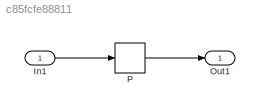
MODEL slx_c85fcfe88811
KIND model
CONFIG AbsTol = auto
CONFIG EnableMultiTasking = off
CONFIG FixedStep = auto
CONFIG MaxStep = auto
CONFIG MinStep = auto
CONFIG RelTol = 1e-3
CONFIG SampleTimeConstraint = Unconstrained
CONFIG Solver = FixedStepDiscrete
CONFIG SolverName = FixedStepDiscrete
CONFIG StartTime = 0.0
CONFIG StopTime = 10.0
BLOCK [Inport] In1
  IconDisplay = Port number
  OutDataTypeStr = uint32
  PortDimensions = 7
BLOCK [Outport] Out1
  IconDisplay = Port number
BLOCK [Lookup_n-D] P
  BreakpointsForDimension1 = [17.3902599383168;86.6760810740272]
  BreakpointsForDimension1DataTypeStr = uint16
  BreakpointsForDimension2 = [23.6896703252245;31.7092124321466;50.5993759293083;74.9034928165485;95.2525899753406]
  BreakpointsForDimension2DataTypeStr = uint16
  BreakpointsForDimension3 = [24.2256220139084;61.9999974604091;65.0063091532607]
  BreakpointsForDimension3DataTypeStr = uint16
  BreakpointsForDimension4 = [6.36898341535872;15.4315939490974]
  BreakpointsForDimension4DataTypeStr = uint16
  BreakpointsForDimension5 = [21.598731952369;24.9544300281141;67.0686924109972]
  BreakpointsForDimension5DataTypeStr = uint16
  BreakpointsForDimension6 = [22.9684907258949;32.3376900284633;69.112629375541;70.9060885283117]
  BreakpointsForDimension6DataTypeStr = uint16
  BreakpointsForDimension7 = [57.6837111751893;67.3527328170914;69.5701328375983]
  BreakpointsForDimension7DataTypeStr = uint16
  ExtrapMethod = Clip
  FractionDataTypeStr = single
  IntermediateResultsDataTypeStr = single
  InternalRulePriority = Speed
  NumberOfTableDimensions = 7
  OutDataTypeStr = Inherit: Inherit from 'Table data'
  Ports = [1, 1]
  RndMeth = Zero
  SaturateOnIntegerOverflow = on
  Table = reshape(repmat([4 5 6 7 8;16 19 20 21 22;10 18 23 24 25],18,8),[2,5,3,2,3,4,3])
  TableDataTypeStr = single
  UseOneInputPortForAllInputData = on
LINE In1:1 -> P:1
LINE P:1 -> Out1:1
